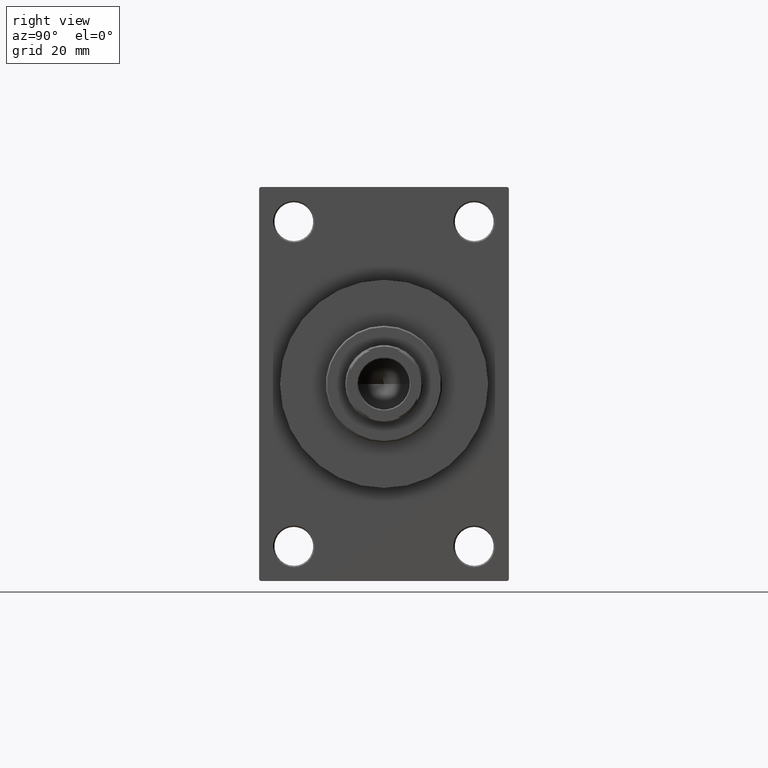
[diagram: clean part render]
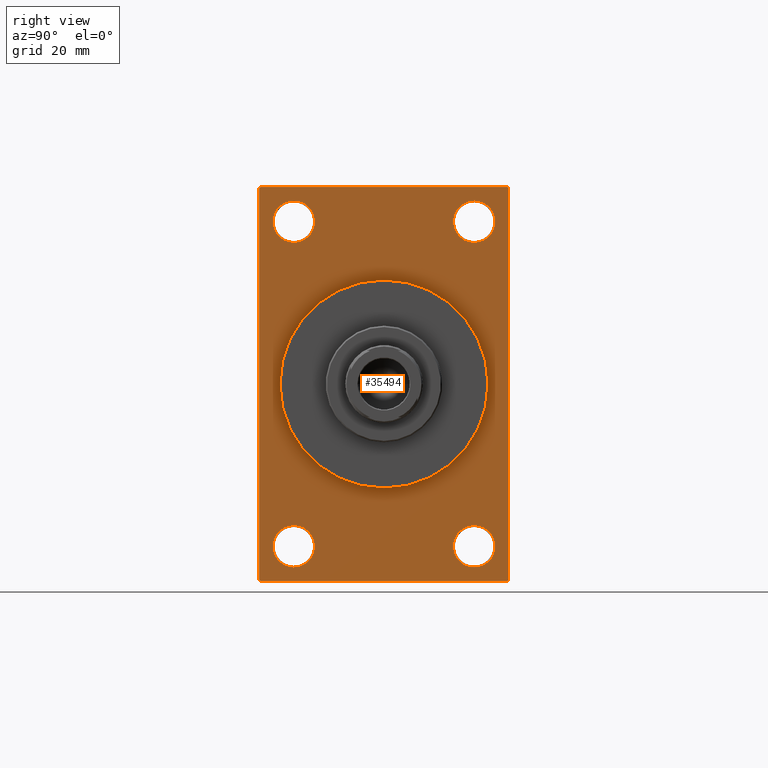
[diagram: same view with one face highlighted and labeled with its STEP entity id]
A machine part, right view. The second image highlights one B-rep face of the part: STEP entity #35494.
In plain terms, the highlighted planar face has unit normal (-1, 0, 0).
Its self-contained STEP definition (entity closure, byte-faithful):
#458 = DIRECTION ( 'NONE',  ( -0.000000000000000000, 0.000000000000000000, 1.000000000000000000 ) ) ;
#693 = EDGE_LOOP ( 'NONE', ( #45697, #28695 ) ) ;
#910 = FACE_BOUND ( 'NONE', #693, .T. ) ;
#954 = EDGE_LOOP ( 'NONE', ( #5536, #990 ) ) ;
#990 = ORIENTED_EDGE ( 'NONE', *, *, #28014, .T. ) ;
#1146 = CARTESIAN_POINT ( 'NONE',  ( 140.0000000000000000, 0.000000000000000000, 37.50000000000000711 ) ) ;
#1163 = DIRECTION ( 'NONE',  ( 0.000000000000000000, 0.000000000000000000, 1.000000000000000000 ) ) ;
#2199 = CARTESIAN_POINT ( 'NONE',  ( 140.0000000000000000, 44.50000000000002132, 71.00000000000000000 ) ) ;
#2217 = VERTEX_POINT ( 'NONE', #20242 ) ;
#2265 = CARTESIAN_POINT ( 'NONE',  ( 140.0000000000000000, -44.99999999999997158, 70.49999999999998579 ) ) ;
#2536 = DIRECTION ( 'NONE',  ( 0.000000000000000000, 0.7071067811865573427, -0.7071067811865378028 ) ) ;
#2646 = AXIS2_PLACEMENT_3D ( 'NONE', #42496, #17186, #5960 ) ;
#2688 = ORIENTED_EDGE ( 'NONE', *, *, #29822, .F. ) ;
#2694 = EDGE_CURVE ( 'NONE', #46927, #22148, #28935, .T. ) ;
#2800 = VERTEX_POINT ( 'NONE', #44233 ) ;
#2971 = CARTESIAN_POINT ( 'NONE',  ( 140.0000000000000000, 45.00000000000001421, -70.99999999999998579 ) ) ;
#3672 = CARTESIAN_POINT ( 'NONE',  ( 140.0000000000000000, -32.50000000000000000, -66.00000000000001421 ) ) ;
#4014 = FACE_OUTER_BOUND ( 'NONE', #15018, .T. ) ;
#4842 = VECTOR ( 'NONE', #2536, 1000.000000000000000 ) ;
#4975 = DIRECTION ( 'NONE',  ( -1.000000000000000000, 0.000000000000000000, -0.000000000000000000 ) ) ;
#5009 = CARTESIAN_POINT ( 'NONE',  ( 140.0000000000000000, -32.50000000000000000, -58.49999999999999289 ) ) ;
#5304 = DIRECTION ( 'NONE',  ( -1.000000000000000000, 0.000000000000000000, -0.000000000000000000 ) ) ;
#5536 = ORIENTED_EDGE ( 'NONE', *, *, #25916, .T. ) ;
#5694 = DIRECTION ( 'NONE',  ( 0.000000000000000000, -4.886545002751570165E-17, -1.000000000000000000 ) ) ;
#5881 = LINE ( 'NONE', #21134, #32066 ) ;
#5912 = VERTEX_POINT ( 'NONE', #28290 ) ;
#5960 = DIRECTION ( 'NONE',  ( 0.000000000000000000, 0.000000000000000000, -1.000000000000000000 ) ) ;
#7196 = CIRCLE ( 'NONE', #2646, 37.50000000000000711 ) ;
#7508 = CARTESIAN_POINT ( 'NONE',  ( 140.0000000000000000, 0.000000000000000000, 0.000000000000000000 ) ) ;
#7689 = EDGE_CURVE ( 'NONE', #8906, #17066, #5881, .T. ) ;
#8346 = AXIS2_PLACEMENT_3D ( 'NONE', #32557, #36141, #14391 ) ;
#8630 = DIRECTION ( 'NONE',  ( -1.000000000000000000, 0.000000000000000000, -0.000000000000000000 ) ) ;
#8906 = VERTEX_POINT ( 'NONE', #42115 ) ;
#9180 = LINE ( 'NONE', #2265, #10043 ) ;
#9939 = DIRECTION ( 'NONE',  ( 0.000000000000000000, 0.000000000000000000, -1.000000000000000000 ) ) ;
#10043 = VECTOR ( 'NONE', #42610, 1000.000000000000000 ) ;
#10111 = ORIENTED_EDGE ( 'NONE', *, *, #2694, .T. ) ;
#10139 = VECTOR ( 'NONE', #5694, 1000.000000000000000 ) ;
#11073 = DIRECTION ( 'NONE',  ( 0.000000000000000000, -0.7071067811865474617, 0.7071067811865474617 ) ) ;
#11098 = CARTESIAN_POINT ( 'NONE',  ( 140.0000000000000000, -32.50000000000000000, 58.50000000000000711 ) ) ;
#11297 = CARTESIAN_POINT ( 'NONE',  ( 140.0000000000000000, 44.50000000000002132, 71.00000000000000000 ) ) ;
#11346 = VERTEX_POINT ( 'NONE', #26202 ) ;
#11409 = FACE_BOUND ( 'NONE', #17770, .T. ) ;
#11521 = AXIS2_PLACEMENT_3D ( 'NONE', #19754, #4975, #1163 ) ;
#11659 = AXIS2_PLACEMENT_3D ( 'NONE', #35731, #20913, #35504 ) ;
#12121 = PLANE ( 'NONE',  #42075 ) ;
#12278 = ORIENTED_EDGE ( 'NONE', *, *, #18787, .T. ) ;
#12309 = ORIENTED_EDGE ( 'NONE', *, *, #33718, .T. ) ;
#12951 = VERTEX_POINT ( 'NONE', #19644 ) ;
#13171 = ORIENTED_EDGE ( 'NONE', *, *, #39900, .T. ) ;
#13190 = VERTEX_POINT ( 'NONE', #23105 ) ;
#13198 = EDGE_CURVE ( 'NONE', #5912, #18571, #27648, .T. ) ;
#13203 = CIRCLE ( 'NONE', #39886, 7.500000000000034639 ) ;
#14391 = DIRECTION ( 'NONE',  ( 0.000000000000000000, 0.000000000000000000, 1.000000000000000000 ) ) ;
#14577 = CARTESIAN_POINT ( 'NONE',  ( 140.0000000000000000, -44.99999999999997158, -70.50000000000000000 ) ) ;
#14735 = VERTEX_POINT ( 'NONE', #20624 ) ;
#14956 = EDGE_CURVE ( 'NONE', #13190, #14735, #13203, .T. ) ;
#15018 = EDGE_LOOP ( 'NONE', ( #17077, #46173, #2688, #46858, #21756, #12278, #18224, #12309 ) ) ;
#15123 = CARTESIAN_POINT ( 'NONE',  ( 140.0000000000000000, -44.49999999999995026, 70.99999999999998579 ) ) ;
#15489 = VECTOR ( 'NONE', #11073, 1000.000000000000114 ) ;
#15889 = ORIENTED_EDGE ( 'NONE', *, *, #26798, .T. ) ;
#16229 = AXIS2_PLACEMENT_3D ( 'NONE', #11098, #44276, #43563 ) ;
#16758 = AXIS2_PLACEMENT_3D ( 'NONE', #41343, #8630, #34186 ) ;
#17066 = VERTEX_POINT ( 'NONE', #14577 ) ;
#17077 = ORIENTED_EDGE ( 'NONE', *, *, #7689, .T. ) ;
#17186 = DIRECTION ( 'NONE',  ( 1.000000000000000000, 0.000000000000000000, 0.000000000000000000 ) ) ;
#17545 = CARTESIAN_POINT ( 'NONE',  ( 140.0000000000000000, -44.49999999999997158, -71.00000000000000000 ) ) ;
#17770 = EDGE_LOOP ( 'NONE', ( #46948, #15889 ) ) ;
#17918 = CARTESIAN_POINT ( 'NONE',  ( 140.0000000000000000, -44.49999999999994316, -71.00000000000000000 ) ) ;
#17921 = EDGE_CURVE ( 'NONE', #21979, #2217, #7196, .T. ) ;
#18224 = ORIENTED_EDGE ( 'NONE', *, *, #36252, .T. ) ;
#18571 = VERTEX_POINT ( 'NONE', #43090 ) ;
#18572 = DIRECTION ( 'NONE',  ( -1.000000000000000000, 0.000000000000000000, -0.000000000000000000 ) ) ;
#18691 = LINE ( 'NONE', #11297, #15489 ) ;
#18787 = EDGE_CURVE ( 'NONE', #5912, #37744, #18691, .T. ) ;
#18876 = EDGE_CURVE ( 'NONE', #11346, #18571, #41840, .T. ) ;
#19559 = DIRECTION ( 'NONE',  ( -1.000000000000000000, 0.000000000000000000, -0.000000000000000000 ) ) ;
#19644 = CARTESIAN_POINT ( 'NONE',  ( 140.0000000000000000, -32.50000000000000000, -50.99999999999995737 ) ) ;
#19754 = CARTESIAN_POINT ( 'NONE',  ( 140.0000000000000000, 32.50000000000000711, 58.50000000000000711 ) ) ;
#20242 = CARTESIAN_POINT ( 'NONE',  ( 140.0000000000000000, 4.592425496802575156E-15, -37.50000000000000711 ) ) ;
#20624 = CARTESIAN_POINT ( 'NONE',  ( 140.0000000000000000, 32.50000000000000711, -50.99999999999996447 ) ) ;
#20635 = LINE ( 'NONE', #2971, #25150 ) ;
#20793 = CIRCLE ( 'NONE', #16229, 7.499999999999936939 ) ;
#20913 = DIRECTION ( 'NONE',  ( -1.000000000000000000, 0.000000000000000000, -0.000000000000000000 ) ) ;
#21134 = CARTESIAN_POINT ( 'NONE',  ( 140.0000000000000000, -44.99999999999997158, 70.99999999999998579 ) ) ;
#21316 = DIRECTION ( 'NONE',  ( -1.000000000000000000, 0.000000000000000000, -0.000000000000000000 ) ) ;
#21756 = ORIENTED_EDGE ( 'NONE', *, *, #13198, .F. ) ;
#21933 = EDGE_LOOP ( 'NONE', ( #10111, #41124 ) ) ;
#21979 = VERTEX_POINT ( 'NONE', #1146 ) ;
#22036 = AXIS2_PLACEMENT_3D ( 'NONE', #5009, #19559, #34151 ) ;
#22052 = DIRECTION ( 'NONE',  ( 1.000000000000000000, 0.000000000000000000, 0.000000000000000000 ) ) ;
#22148 = VERTEX_POINT ( 'NONE', #42622 ) ;
#22756 = AXIS2_PLACEMENT_3D ( 'NONE', #43994, #21316, #36138 ) ;
#23105 = CARTESIAN_POINT ( 'NONE',  ( 140.0000000000000000, 32.50000000000000711, -66.00000000000002842 ) ) ;
#23203 = DIRECTION ( 'NONE',  ( 0.000000000000000000, 0.000000000000000000, 1.000000000000000000 ) ) ;
#23225 = VERTEX_POINT ( 'NONE', #3672 ) ;
#23694 = CIRCLE ( 'NONE', #11521, 7.499999999999936939 ) ;
#23830 = VECTOR ( 'NONE', #25179, 1000.000000000000000 ) ;
#24877 = VERTEX_POINT ( 'NONE', #25817 ) ;
#25150 = VECTOR ( 'NONE', #39503, 1000.000000000000000 ) ;
#25179 = DIRECTION ( 'NONE',  ( 0.000000000000000000, -1.000000000000000000, -1.541976423090495387E-16 ) ) ;
#25817 = CARTESIAN_POINT ( 'NONE',  ( 140.0000000000000000, -32.50000000000000000, 51.00000000000007105 ) ) ;
#25916 = EDGE_CURVE ( 'NONE', #23225, #12951, #28954, .T. ) ;
#26104 = DIRECTION ( 'NONE',  ( 0.000000000000000000, 0.000000000000000000, -1.000000000000000000 ) ) ;
#26202 = CARTESIAN_POINT ( 'NONE',  ( 140.0000000000000000, 44.50000000000004263, -70.99999999999998579 ) ) ;
#26798 = EDGE_CURVE ( 'NONE', #14735, #13190, #42631, .T. ) ;
#27311 = CARTESIAN_POINT ( 'NONE',  ( 140.0000000000000000, 32.50000000000000711, 51.00000000000007105 ) ) ;
#27648 = LINE ( 'NONE', #44858, #10139 ) ;
#27654 = CARTESIAN_POINT ( 'NONE',  ( 140.0000000000000000, 45.00000000000002132, 71.00000000000000000 ) ) ;
#28014 = EDGE_CURVE ( 'NONE', #12951, #23225, #42661, .T. ) ;
#28290 = CARTESIAN_POINT ( 'NONE',  ( 140.0000000000000000, 45.00000000000002132, 70.50000000000000000 ) ) ;
#28695 = ORIENTED_EDGE ( 'NONE', *, *, #39906, .F. ) ;
#28935 = CIRCLE ( 'NONE', #8346, 7.499999999999936939 ) ;
#28954 = CIRCLE ( 'NONE', #16758, 7.500000000000041744 ) ;
#29822 = EDGE_CURVE ( 'NONE', #11346, #30559, #20635, .T. ) ;
#30548 = VERTEX_POINT ( 'NONE', #15123 ) ;
#30559 = VERTEX_POINT ( 'NONE', #17918 ) ;
#32066 = VECTOR ( 'NONE', #9939, 1000.000000000000000 ) ;
#32557 = CARTESIAN_POINT ( 'NONE',  ( 140.0000000000000000, 32.50000000000000711, 58.50000000000000711 ) ) ;
#33096 = EDGE_CURVE ( 'NONE', #22148, #46927, #23694, .T. ) ;
#33498 = CARTESIAN_POINT ( 'NONE',  ( 140.0000000000000000, 32.50000000000000711, -58.50000000000000000 ) ) ;
#33718 = EDGE_CURVE ( 'NONE', #30548, #8906, #9180, .T. ) ;
#33756 = CIRCLE ( 'NONE', #11659, 7.499999999999936939 ) ;
#34151 = DIRECTION ( 'NONE',  ( 0.000000000000000000, 0.000000000000000000, 1.000000000000000000 ) ) ;
#34186 = DIRECTION ( 'NONE',  ( 0.000000000000000000, 0.000000000000000000, 1.000000000000000000 ) ) ;
#35492 = LINE ( 'NONE', #17545, #4842 ) ;
#35494 = ADVANCED_FACE ( 'NONE', ( #44839, #36736, #11409, #40786, #910, #4014 ), #12121, .F. ) ;
#35504 = DIRECTION ( 'NONE',  ( 0.000000000000000000, 0.000000000000000000, 1.000000000000000000 ) ) ;
#35731 = CARTESIAN_POINT ( 'NONE',  ( 140.0000000000000000, -32.50000000000000000, 58.50000000000000711 ) ) ;
#36138 = DIRECTION ( 'NONE',  ( 0.000000000000000000, 0.000000000000000000, 1.000000000000000000 ) ) ;
#36141 = DIRECTION ( 'NONE',  ( -1.000000000000000000, 0.000000000000000000, -0.000000000000000000 ) ) ;
#36252 = EDGE_CURVE ( 'NONE', #37744, #30548, #42236, .T. ) ;
#36736 = FACE_BOUND ( 'NONE', #954, .T. ) ;
#37440 = EDGE_CURVE ( 'NONE', #24877, #2800, #33756, .T. ) ;
#37565 = AXIS2_PLACEMENT_3D ( 'NONE', #7508, #22052, #26104 ) ;
#37744 = VERTEX_POINT ( 'NONE', #2199 ) ;
#39503 = DIRECTION ( 'NONE',  ( 0.000000000000000000, -1.000000000000000000, -1.541976423090495633E-16 ) ) ;
#39769 = EDGE_CURVE ( 'NONE', #17066, #30559, #35492, .T. ) ;
#39886 = AXIS2_PLACEMENT_3D ( 'NONE', #33498, #5304, #23203 ) ;
#39900 = EDGE_CURVE ( 'NONE', #2800, #24877, #20793, .T. ) ;
#39906 = EDGE_CURVE ( 'NONE', #2217, #21979, #43661, .T. ) ;
#40546 = CARTESIAN_POINT ( 'NONE',  ( 140.0000000000000000, 0.000000000000000000, 0.000000000000000000 ) ) ;
#40786 = FACE_BOUND ( 'NONE', #21933, .T. ) ;
#41124 = ORIENTED_EDGE ( 'NONE', *, *, #33096, .T. ) ;
#41343 = CARTESIAN_POINT ( 'NONE',  ( 140.0000000000000000, -32.50000000000000000, -58.49999999999999289 ) ) ;
#41840 = LINE ( 'NONE', #45273, #43724 ) ;
#42075 = AXIS2_PLACEMENT_3D ( 'NONE', #40546, #18572, #458 ) ;
#42115 = CARTESIAN_POINT ( 'NONE',  ( 140.0000000000000000, -44.99999999999997158, 70.49999999999998579 ) ) ;
#42236 = LINE ( 'NONE', #27654, #23830 ) ;
#42496 = CARTESIAN_POINT ( 'NONE',  ( 140.0000000000000000, 0.000000000000000000, 0.000000000000000000 ) ) ;
#42610 = DIRECTION ( 'NONE',  ( -0.000000000000000000, -0.7071067811865426878, -0.7071067811865524577 ) ) ;
#42622 = CARTESIAN_POINT ( 'NONE',  ( 140.0000000000000000, 32.50000000000000711, 65.99999999999994316 ) ) ;
#42631 = CIRCLE ( 'NONE', #22756, 7.500000000000034639 ) ;
#42661 = CIRCLE ( 'NONE', #22036, 7.500000000000041744 ) ;
#43090 = CARTESIAN_POINT ( 'NONE',  ( 140.0000000000000000, 45.00000000000001421, -70.50000000000001421 ) ) ;
#43226 = EDGE_LOOP ( 'NONE', ( #46655, #13171 ) ) ;
#43563 = DIRECTION ( 'NONE',  ( 0.000000000000000000, 0.000000000000000000, 1.000000000000000000 ) ) ;
#43661 = CIRCLE ( 'NONE', #37565, 37.50000000000000711 ) ;
#43724 = VECTOR ( 'NONE', #45747, 999.9999999999998863 ) ;
#43994 = CARTESIAN_POINT ( 'NONE',  ( 140.0000000000000000, 32.50000000000000711, -58.50000000000000000 ) ) ;
#44233 = CARTESIAN_POINT ( 'NONE',  ( 140.0000000000000000, -32.50000000000000000, 65.99999999999994316 ) ) ;
#44276 = DIRECTION ( 'NONE',  ( -1.000000000000000000, 0.000000000000000000, -0.000000000000000000 ) ) ;
#44839 = FACE_BOUND ( 'NONE', #43226, .T. ) ;
#44858 = CARTESIAN_POINT ( 'NONE',  ( 140.0000000000000000, 45.00000000000002132, 71.00000000000000000 ) ) ;
#45273 = CARTESIAN_POINT ( 'NONE',  ( 140.0000000000000000, 45.00000000000001421, -70.50000000000001421 ) ) ;
#45697 = ORIENTED_EDGE ( 'NONE', *, *, #17921, .F. ) ;
#45747 = DIRECTION ( 'NONE',  ( -0.000000000000000000, 0.7071067811865574537, 0.7071067811865376918 ) ) ;
#46173 = ORIENTED_EDGE ( 'NONE', *, *, #39769, .T. ) ;
#46655 = ORIENTED_EDGE ( 'NONE', *, *, #37440, .T. ) ;
#46858 = ORIENTED_EDGE ( 'NONE', *, *, #18876, .T. ) ;
#46927 = VERTEX_POINT ( 'NONE', #27311 ) ;
#46948 = ORIENTED_EDGE ( 'NONE', *, *, #14956, .T. ) ;